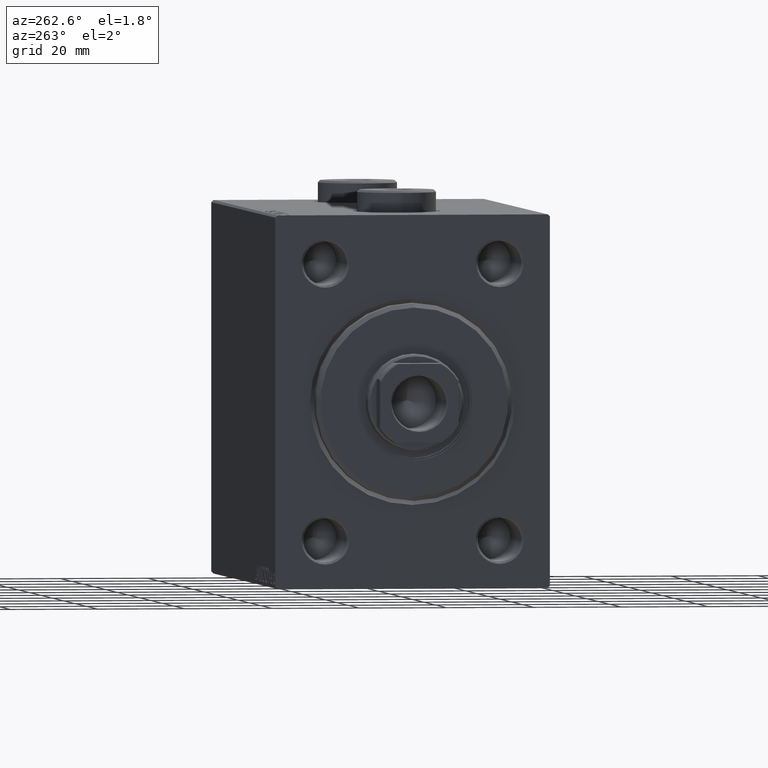
[diagram: clean part render]
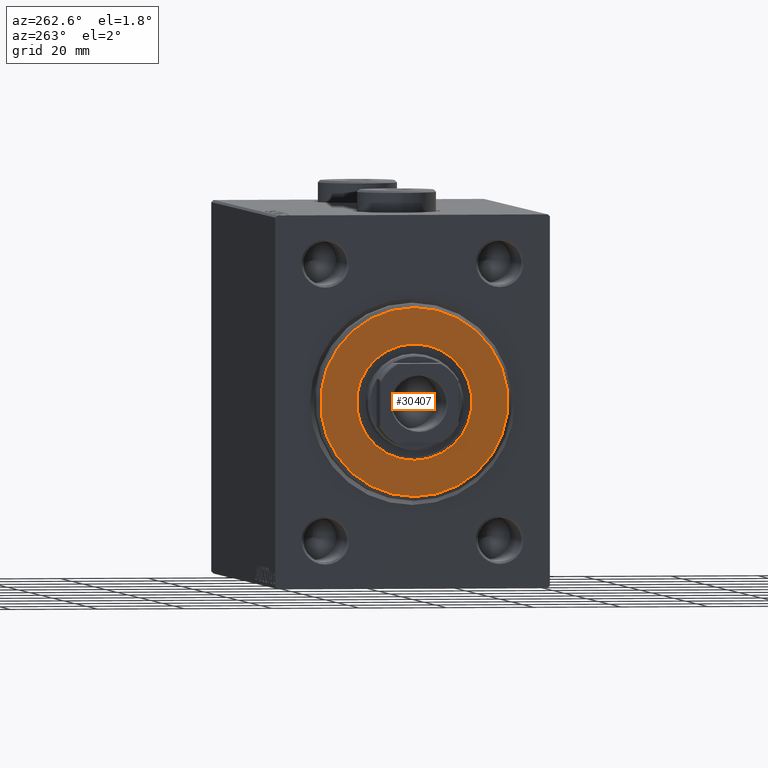
[diagram: same view with one face highlighted and labeled with its STEP entity id]
A machine part, auxiliary view. The second image highlights one B-rep face of the part: STEP entity #30407.
In plain terms, the highlighted planar face has unit normal (-1, 0, 0).
Its self-contained STEP definition (entity closure, byte-faithful):
#1001 = CIRCLE ( 'NONE', #9833, 13.25000000000000178 ) ;
#2333 = ORIENTED_EDGE ( 'NONE', *, *, #44009, .F. ) ;
#2380 = DIRECTION ( 'NONE',  ( 1.000000000000000000, 0.000000000000000000, 0.000000000000000000 ) ) ;
#3310 = CARTESIAN_POINT ( 'NONE',  ( 3.000000000000000000, 0.000000000000000000, 0.000000000000000000 ) ) ;
#3777 = CARTESIAN_POINT ( 'NONE',  ( 3.000000000000000000, 2.694222958124177598E-15, -21.50000000000000355 ) ) ;
#4883 = DIRECTION ( 'NONE',  ( 0.000000000000000000, 0.000000000000000000, -1.000000000000000000 ) ) ;
#7368 = EDGE_CURVE ( 'NONE', #15494, #30071, #40916, .T. ) ;
#7624 = EDGE_LOOP ( 'NONE', ( #2333, #25370 ) ) ;
#8006 = DIRECTION ( 'NONE',  ( 0.000000000000000000, 0.000000000000000000, -1.000000000000000000 ) ) ;
#8071 = CIRCLE ( 'NONE', #34601, 13.25000000000000178 ) ;
#8693 = CARTESIAN_POINT ( 'NONE',  ( 3.000000000000000000, 0.000000000000000000, 0.000000000000000000 ) ) ;
#9833 = AXIS2_PLACEMENT_3D ( 'NONE', #19914, #2380, #12543 ) ;
#12543 = DIRECTION ( 'NONE',  ( 0.000000000000000000, 0.000000000000000000, -1.000000000000000000 ) ) ;
#12708 = ORIENTED_EDGE ( 'NONE', *, *, #25214, .T. ) ;
#13458 = PLANE ( 'NONE',  #14463 ) ;
#14463 = AXIS2_PLACEMENT_3D ( 'NONE', #3310, #23622, #44809 ) ;
#15494 = VERTEX_POINT ( 'NONE', #3777 ) ;
#18519 = CARTESIAN_POINT ( 'NONE',  ( 3.000000000000000000, 0.000000000000000000, 0.000000000000000000 ) ) ;
#19168 = EDGE_CURVE ( 'NONE', #29591, #34197, #1001, .T. ) ;
#19914 = CARTESIAN_POINT ( 'NONE',  ( 3.000000000000000000, 0.000000000000000000, 0.000000000000000000 ) ) ;
#21007 = CIRCLE ( 'NONE', #24703, 21.50000000000000355 ) ;
#22402 = EDGE_LOOP ( 'NONE', ( #12708, #45347 ) ) ;
#22413 = CARTESIAN_POINT ( 'NONE',  ( 3.000000000000000000, 0.000000000000000000, 0.000000000000000000 ) ) ;
#23622 = DIRECTION ( 'NONE',  ( 1.000000000000000000, -0.000000000000000000, 0.000000000000000000 ) ) ;
#24703 = AXIS2_PLACEMENT_3D ( 'NONE', #8693, #32921, #8006 ) ;
#25214 = EDGE_CURVE ( 'NONE', #30071, #15494, #21007, .T. ) ;
#25370 = ORIENTED_EDGE ( 'NONE', *, *, #19168, .F. ) ;
#28469 = DIRECTION ( 'NONE',  ( 0.000000000000000000, 0.000000000000000000, -1.000000000000000000 ) ) ;
#29591 = VERTEX_POINT ( 'NONE', #43515 ) ;
#30071 = VERTEX_POINT ( 'NONE', #38440 ) ;
#30395 = CARTESIAN_POINT ( 'NONE',  ( 3.000000000000000000, 0.000000000000000000, -13.25000000000000178 ) ) ;
#30407 = ADVANCED_FACE ( 'NONE', ( #30989, #30535 ), #13458, .T. ) ;
#30535 = FACE_BOUND ( 'NONE', #7624, .T. ) ;
#30989 = FACE_OUTER_BOUND ( 'NONE', #22402, .T. ) ;
#32921 = DIRECTION ( 'NONE',  ( 1.000000000000000000, -0.000000000000000000, 0.000000000000000000 ) ) ;
#34197 = VERTEX_POINT ( 'NONE', #30395 ) ;
#34601 = AXIS2_PLACEMENT_3D ( 'NONE', #18519, #35606, #28469 ) ;
#35606 = DIRECTION ( 'NONE',  ( 1.000000000000000000, 0.000000000000000000, 0.000000000000000000 ) ) ;
#36486 = DIRECTION ( 'NONE',  ( 1.000000000000000000, -0.000000000000000000, 0.000000000000000000 ) ) ;
#38440 = CARTESIAN_POINT ( 'NONE',  ( 3.000000000000000000, 0.000000000000000000, 21.50000000000000355 ) ) ;
#40916 = CIRCLE ( 'NONE', #43117, 21.50000000000000355 ) ;
#43117 = AXIS2_PLACEMENT_3D ( 'NONE', #22413, #36486, #4883 ) ;
#43515 = CARTESIAN_POINT ( 'NONE',  ( 3.000000000000000000, 1.622657008870243277E-15, 13.25000000000000178 ) ) ;
#44009 = EDGE_CURVE ( 'NONE', #34197, #29591, #8071, .T. ) ;
#44809 = DIRECTION ( 'NONE',  ( 0.000000000000000000, 0.000000000000000000, -1.000000000000000000 ) ) ;
#45347 = ORIENTED_EDGE ( 'NONE', *, *, #7368, .T. ) ;